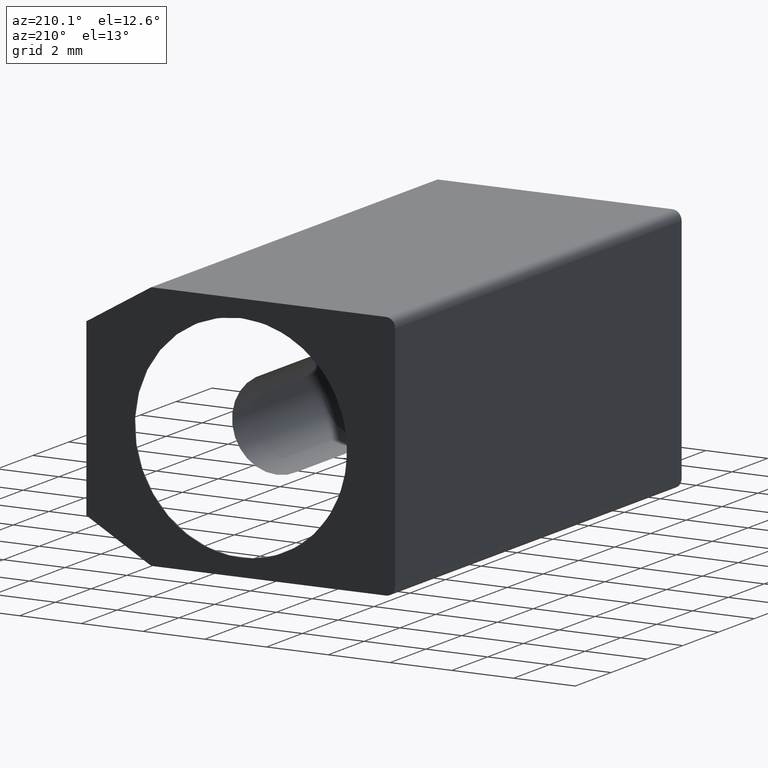
[diagram: clean part render]
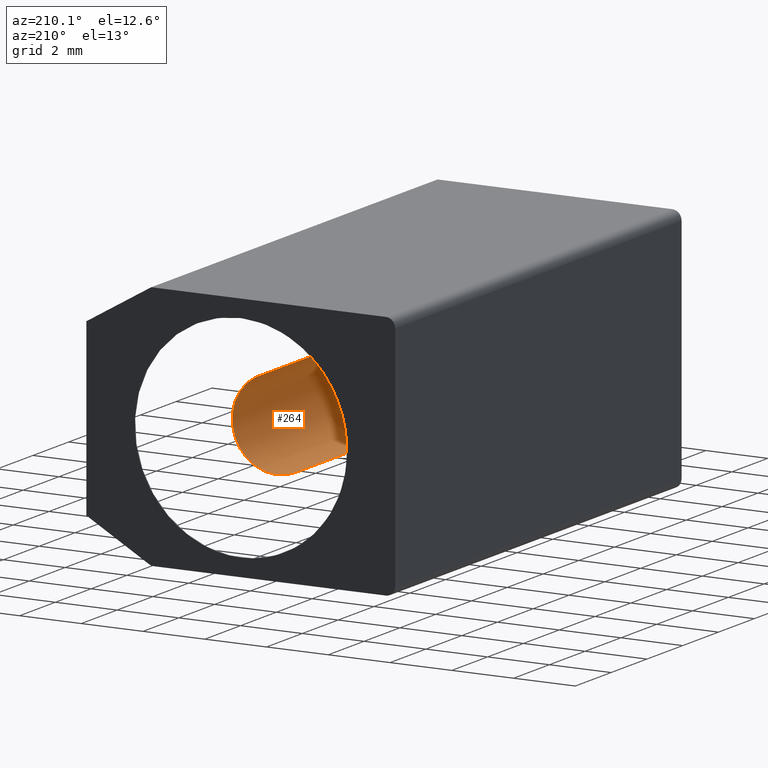
[diagram: same view with one face highlighted and labeled with its STEP entity id]
A machine part, auxiliary view. The second image highlights one B-rep face of the part: STEP entity #264.
In plain terms, the highlighted cylindrical surface (bore or boss wall) has radius 1.4483 mm, axis along (-0, 1, -0).
Its self-contained STEP definition (entity closure, byte-faithful):
#17=CYLINDRICAL_SURFACE('',#307,1.44827586078);
#27=CIRCLE('',#306,1.44827586078);
#28=CIRCLE('',#308,1.44827586078);
#39=FACE_OUTER_BOUND('',#55,.T.);
#55=EDGE_LOOP('',(#199,#200,#201,#202));
#81=LINE('',#444,#106);
#106=VECTOR('',#358,1.44827586078);
#132=VERTEX_POINT('',#439);
#133=VERTEX_POINT('',#443);
#158=EDGE_CURVE('',#132,#132,#27,.T.);
#159=EDGE_CURVE('',#132,#133,#81,.T.);
#160=EDGE_CURVE('',#133,#133,#28,.T.);
#199=ORIENTED_EDGE('',*,*,#158,.F.);
#200=ORIENTED_EDGE('',*,*,#159,.T.);
#201=ORIENTED_EDGE('',*,*,#160,.T.);
#202=ORIENTED_EDGE('',*,*,#159,.F.);
#264=ADVANCED_FACE('',(#39),#17,.F.);
#306=AXIS2_PLACEMENT_3D('',#441,#354,#355);
#307=AXIS2_PLACEMENT_3D('',#442,#356,#357);
#308=AXIS2_PLACEMENT_3D('',#445,#359,#360);
#354=DIRECTION('center_axis',(-3.88578058618805E-16,1.,-3.53883589099266E-16));
#355=DIRECTION('ref_axis',(1.,3.88578058618805E-16,-4.99600361081319E-16));
#356=DIRECTION('center_axis',(-3.88578058618805E-16,1.,-3.53883589099266E-16));
#357=DIRECTION('ref_axis',(-4.99600361081319E-16,-3.53883589099267E-16,
-1.));
#358=DIRECTION('',(-3.88578058618805E-16,1.,-3.53883589099266E-16));
#359=DIRECTION('center_axis',(-3.88578058618805E-16,1.,-3.53883589099266E-16));
#360=DIRECTION('ref_axis',(1.,3.88578058618805E-16,-4.99600361081319E-16));
#439=CARTESIAN_POINT('',(-9.57583973576758,34.7852518209996,-29.8915164360623));
#441=CARTESIAN_POINT('Origin',(-9.57583973576758,34.7852518209996,-31.3397922968424));
#442=CARTESIAN_POINT('Origin',(-9.57583973576758,37.2901779271446,-31.3397922968424));
#443=CARTESIAN_POINT('',(-9.57583973576758,39.7951040332897,-29.8915164360624));
#444=CARTESIAN_POINT('',(-9.57583973576758,37.2901779271446,-29.8915164360624));
#445=CARTESIAN_POINT('Origin',(-9.57583973576758,39.7951040332897,-31.3397922968424));